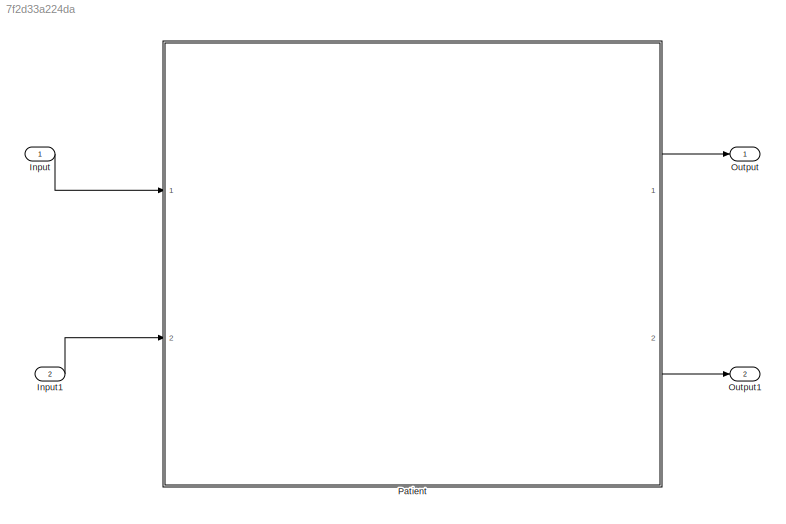
MODEL slx_7f2d33a224da
KIND model
CONFIG AbsTol = auto
CONFIG EnableMultiTasking = off
CONFIG FixedStep = auto
CONFIG MaxStep = auto
CONFIG MinStep = auto
CONFIG RelTol = 1e-3
CONFIG SampleTimeConstraint = Unconstrained
CONFIG SolverName = VariableStepAuto
CONFIG StartTime = 0.0
CONFIG StopTime = 10.0
BLOCK [Inport] Input
BLOCK [Inport] Input1
  Port = 2
BLOCK [Outport] Output
  SignalName = BIS
BLOCK [Outport] Output1
  Port = 2
  SignalName = RASS
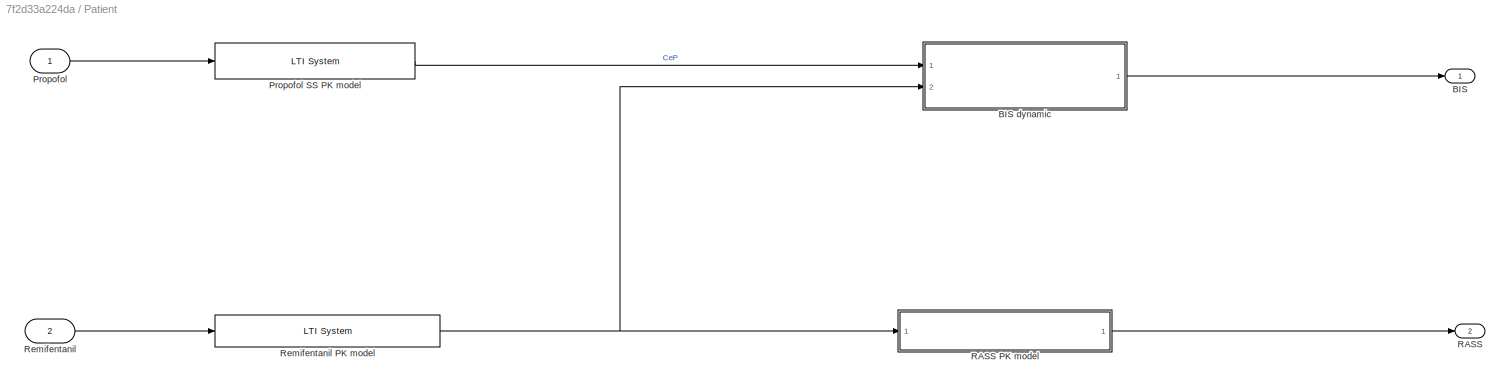
BLOCK [SubSystem] Patient
  Ports = [2, 2]
  RequestExecContextInheritance = off
BLOCK [Outport] Patient/BIS
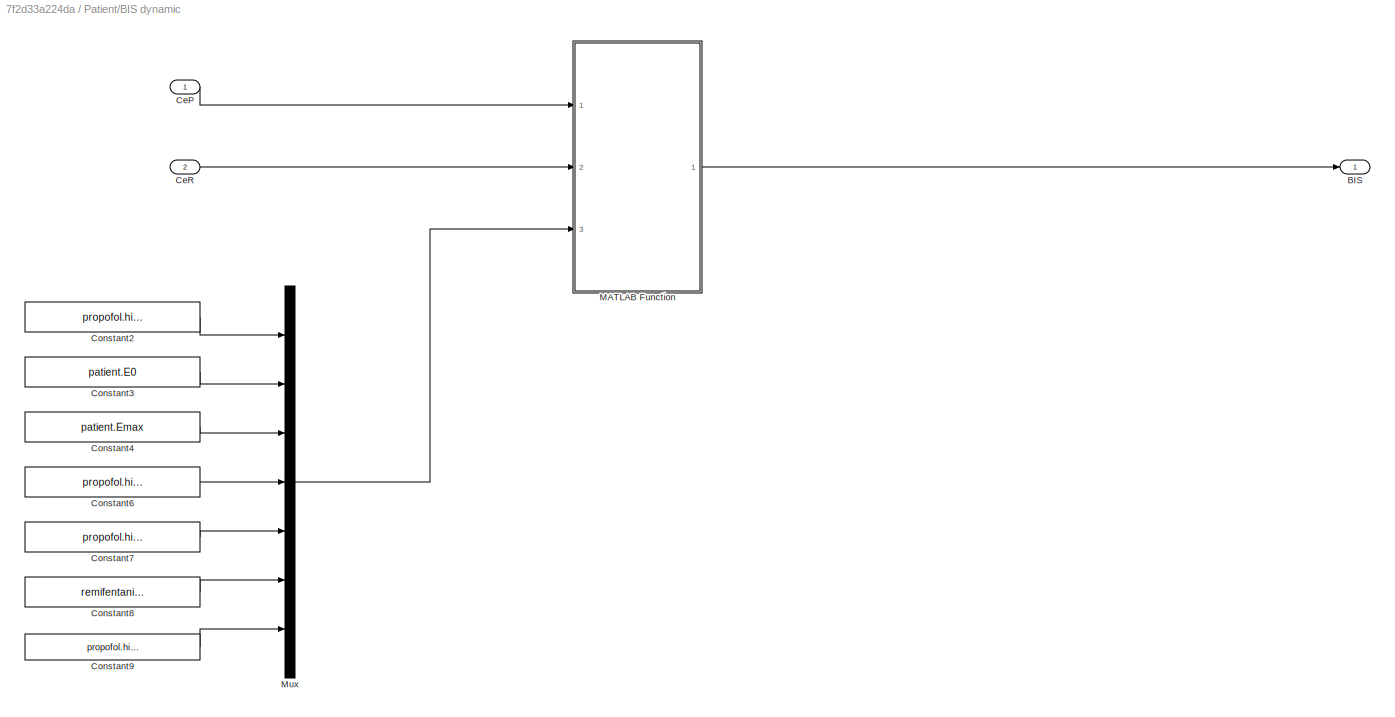
BLOCK [SubSystem] Patient/BIS dynamic
  Ports = [2, 1]
  RequestExecContextInheritance = off
BLOCK [Outport] Patient/BIS dynamic/BIS
BLOCK [Inport] Patient/BIS dynamic/CeP
BLOCK [Inport] Patient/BIS dynamic/CeR
  Port = 2
BLOCK [Constant] Patient/BIS dynamic/Constant2
  Value = propofol.hill_Propofol.beta
BLOCK [Constant] Patient/BIS dynamic/Constant3
  Value = patient.E0
BLOCK [Constant] Patient/BIS dynamic/Constant4
  Value = patient.Emax
BLOCK [Constant] Patient/BIS dynamic/Constant6
  Value = propofol.hill_Propofol.gamma
BLOCK [Constant] Patient/BIS dynamic/Constant7
  Value = propofol.hill_Propofol.C50P
BLOCK [Constant] Patient/BIS dynamic/Constant8
  Value = remifentanil.hill_Remifentanil.C50R
BLOCK [Constant] Patient/BIS dynamic/Constant9
  Value = propofol.hill_Propofol.sigma
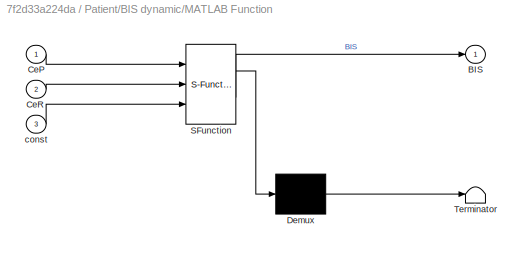
BLOCK [SubSystem] Patient/BIS dynamic/MATLAB Function
  ErrorFcn = Stateflow.Translate.translate
  PermitHierarchicalResolution = ExplicitOnly
  Ports = [3, 1]
  RequestExecContextInheritance = off
  SFBlockType = MATLAB Function
  TreatAsAtomicUnit = on
BLOCK [Demux] Patient/BIS dynamic/MATLAB Function/ Demux 
  Outputs = 1
  Ports = [1, 1]
BLOCK [S-Function] Patient/BIS dynamic/MATLAB Function/ SFunction 
  EnableBusSupport = on
  FunctionName = sf_sfun
  PortCounts = [3 2]
  Ports = [3, 2]
  SFcnIsStateOwnerBlock = off
  SFunctionDeploymentMode = off
  Tag = Stateflow S-Function 2
BLOCK [Terminator] Patient/BIS dynamic/MATLAB Function/ Terminator 
BLOCK [Outport] Patient/BIS dynamic/MATLAB Function/BIS
BLOCK [Inport] Patient/BIS dynamic/MATLAB Function/CeP
BLOCK [Inport] Patient/BIS dynamic/MATLAB Function/CeR
  Port = 2
BLOCK [Inport] Patient/BIS dynamic/MATLAB Function/const
  Port = 3
BLOCK [Mux] Patient/BIS dynamic/Mux
  DisplayOption = bar
  Inputs = 7
  Ports = [7, 1]
BLOCK [Inport] Patient/Propofol
BLOCK [Reference] Patient/Propofol SS PK model  REF=cstblocks/LTI System
  Ports = [1, 1]
  SourceBlock = cstblocks/LTI System
  SourceProductBaseCode = CT
  SourceType = LTI Block
BLOCK [Outport] Patient/RASS
  Port = 2
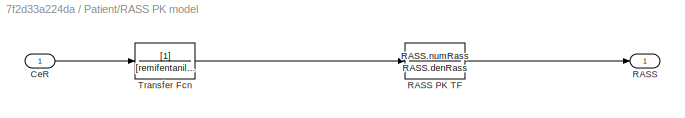
BLOCK [SubSystem] Patient/RASS PK model
  Ports = [1, 1]
  RequestExecContextInheritance = off
BLOCK [Inport] Patient/RASS PK model/CeR
BLOCK [Outport] Patient/RASS PK model/RASS
BLOCK [TransferFcn] Patient/RASS PK model/RASS PK TF
  Denominator = RASS.denRass
  Numerator = RASS.numRass
BLOCK [TransferFcn] Patient/RASS PK model/Transfer Fcn
  Denominator = [remifentanil.k1r*15 remifentanil.k0r]
BLOCK [Inport] Patient/Remifentanil
  Port = 2
BLOCK [Reference] Patient/Remifentanil PK model  REF=cstblocks/LTI System
  Ports = [1, 1]
  SourceBlock = cstblocks/LTI System
  SourceProductBaseCode = CT
  SourceType = LTI Block
LINE Input1:1 -> Patient:2
LINE Input:1 -> Patient:1
LINE Patient/BIS dynamic/CeP:1 -> Patient/BIS dynamic/MATLAB Function:1
LINE Patient/BIS dynamic/CeR:1 -> Patient/BIS dynamic/MATLAB Function:2
LINE Patient/BIS dynamic/Constant2:1 -> Patient/BIS dynamic/Mux:1
LINE Patient/BIS dynamic/Constant3:1 -> Patient/BIS dynamic/Mux:2
LINE Patient/BIS dynamic/Constant4:1 -> Patient/BIS dynamic/Mux:3
LINE Patient/BIS dynamic/Constant6:1 -> Patient/BIS dynamic/Mux:4
LINE Patient/BIS dynamic/Constant7:1 -> Patient/BIS dynamic/Mux:5
LINE Patient/BIS dynamic/Constant8:1 -> Patient/BIS dynamic/Mux:6
LINE Patient/BIS dynamic/Constant9:1 -> Patient/BIS dynamic/Mux:7
LINE Patient/BIS dynamic/MATLAB Function:1 -> Patient/BIS dynamic/BIS:1
LINE Patient/BIS dynamic/Mux:1 -> Patient/BIS dynamic/MATLAB Function:3
LINE Patient/BIS dynamic:1 -> Patient/BIS:1
LINE Patient/Propofol SS PK model:1 -> Patient/BIS dynamic:1
LINE Patient/Propofol:1 -> Patient/Propofol SS PK model:1
LINE Patient/RASS PK model/CeR:1 -> Patient/RASS PK model/Transfer Fcn:1
LINE Patient/RASS PK model/RASS PK TF:1 -> Patient/RASS PK model/RASS:1
LINE Patient/RASS PK model/Transfer Fcn:1 -> Patient/RASS PK model/RASS PK TF:1
LINE Patient/RASS PK model:1 -> Patient/RASS:1
NET Patient/Remifentanil PK model:1 -> Patient/BIS dynamic:2, Patient/RASS PK model:1
LINE Patient/Remifentanil:1 -> Patient/Remifentanil PK model:1
LINE Patient:1 -> Output:1
LINE Patient:2 -> Output1:1
note: NET lines group one-source signal fan-out (src -> all destinations, sorted); 1:1 wires keep LINE
CHART Patient/BIS dynamic/MATLAB Function states=1 transitions=1
  STATE_LABEL 'eML_blk_kernel()'
  STATE_LABEL 'SCRIPT:\nfunction BIS = fcn(CeP,CeR, const)\n\nif CeP >=0 && CeR >=0\n    %% Constant declaration\n    beta = const(1);\n    E0 = const(2); %starting effect\n%     E0 = const(2)-100; %starting effect\n    Emax = const(3); %maximum effect achievable\n    gamma = const(4); %sigmoidicity\n    C50P = const(5); % half effect concentration\n    C50R = const(6); % half effect concentration\n    sigma = const(7);% si...<+245ch>'
CHART  states=0 transitions=0
